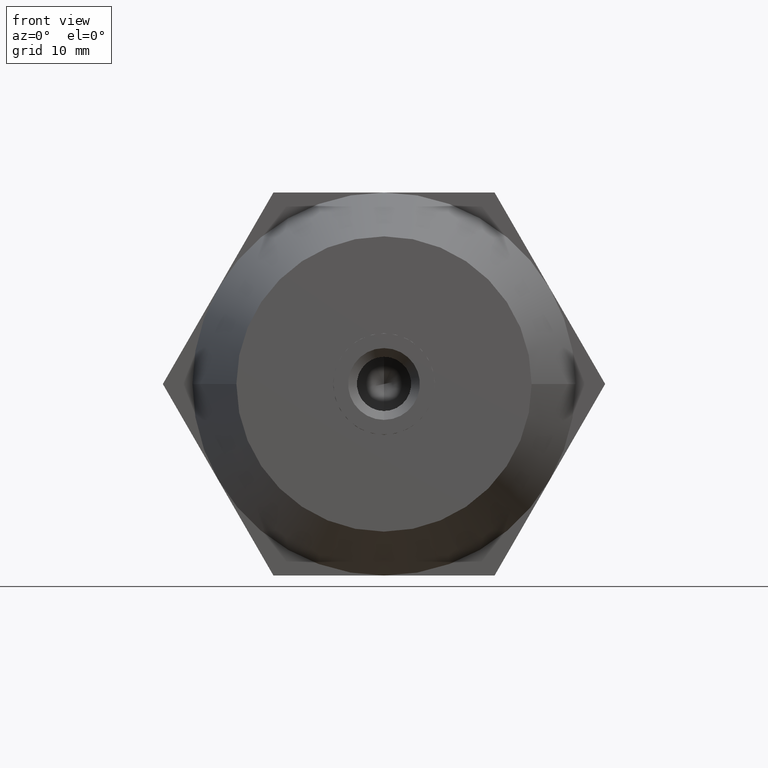
[diagram: clean part render]
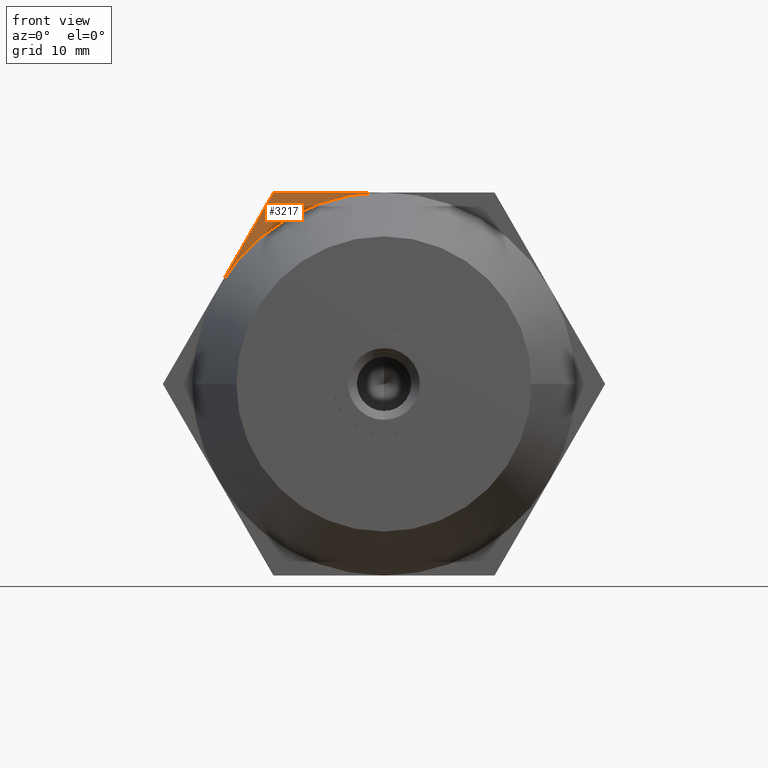
[diagram: same view with one face highlighted and labeled with its STEP entity id]
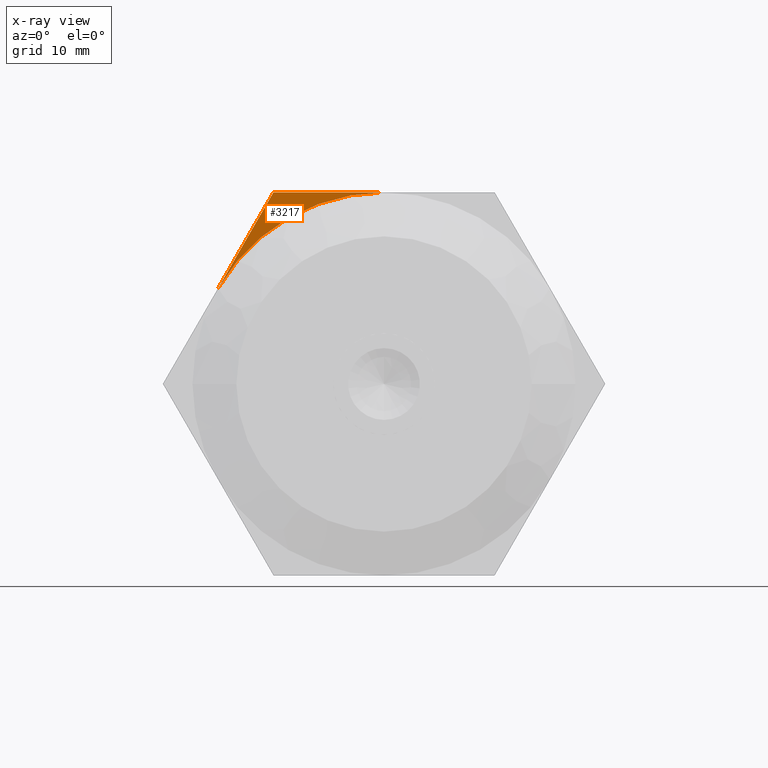
[diagram: x-ray of the same camera — body ghosted, the highlighted face saturated]
A machine part, front view. The second image highlights one B-rep face of the part: STEP entity #3217.
The next image is the same camera in x-ray: the body ghosted, the highlighted face saturated — about 0% of this face is hidden behind the body in this view.
In plain terms, the highlighted planar face has unit normal (0, 1, 0).
Its self-contained STEP definition (entity closure, byte-faithful):
#142 = VERTEX_POINT ( 'NONE', #1043 ) ;
#198 = AXIS2_PLACEMENT_3D ( 'NONE', #3121, #2288, #1663 ) ;
#211 = VERTEX_POINT ( 'NONE', #3705 ) ;
#287 = CARTESIAN_POINT ( 'NONE',  ( 4.476762181554124600E-016, -5.000000000000000000, 24.00000000000000000 ) ) ;
#412 = ORIENTED_EDGE ( 'NONE', *, *, #1094, .T. ) ;
#437 = DIRECTION ( 'NONE',  ( 0.4999999999999998900, 0.0000000000000000000, 0.8660254037844387100 ) ) ;
#524 = EDGE_CURVE ( 'NONE', #211, #142, #3124, .T. ) ;
#651 = EDGE_LOOP ( 'NONE', ( #3334, #412, #1664 ) ) ;
#870 = DIRECTION ( 'NONE',  ( 0.0000000000000000000, 0.0000000000000000000, 1.000000000000000000 ) ) ;
#1043 = CARTESIAN_POINT ( 'NONE',  ( -13.85640646055101900, -5.000000000000000000, 24.00000000000000000 ) ) ;
#1094 = EDGE_CURVE ( 'NONE', #211, #1145, #2037, .T. ) ;
#1145 = VERTEX_POINT ( 'NONE', #287 ) ;
#1208 = FACE_OUTER_BOUND ( 'NONE', #651, .T. ) ;
#1307 = DIRECTION ( 'NONE',  ( 1.000000000000000000, 0.0000000000000000000, 1.251928832280965700E-016 ) ) ;
#1449 = VECTOR ( 'NONE', #1307, 1000.000000000000000 ) ;
#1567 = VECTOR ( 'NONE', #437, 1000.000000000000000 ) ;
#1663 = DIRECTION ( 'NONE',  ( -1.000000000000000000, -1.445602896647339200E-016, 0.0000000000000000000 ) ) ;
#1664 = ORIENTED_EDGE ( 'NONE', *, *, #2536, .F. ) ;
#2037 = CIRCLE ( 'NONE', #198, 24.00000000000000000 ) ;
#2047 = PLANE ( 'NONE',  #2460 ) ;
#2172 = CARTESIAN_POINT ( 'NONE',  ( -13.85640646055101900, -5.000000000000000000, 24.00000000000000000 ) ) ;
#2288 = DIRECTION ( 'NONE',  ( -1.549594883678885000E-016, 1.000000000000000000, 0.0000000000000000000 ) ) ;
#2460 = AXIS2_PLACEMENT_3D ( 'NONE', #2584, #3184, #870 ) ;
#2536 = EDGE_CURVE ( 'NONE', #142, #1145, #2715, .T. ) ;
#2584 = CARTESIAN_POINT ( 'NONE',  ( 0.0000000000000000000, -5.000000000000000000, 0.0000000000000000000 ) ) ;
#2715 = LINE ( 'NONE', #2172, #1449 ) ;
#2770 = CARTESIAN_POINT ( 'NONE',  ( -27.71281292110205300, -5.000000000000000000, 1.212626971216108200E-016 ) ) ;
#3121 = CARTESIAN_POINT ( 'NONE',  ( 3.452305415629730200E-015, -5.000000000000000000, 0.0000000000000000000 ) ) ;
#3124 = LINE ( 'NONE', #2770, #1567 ) ;
#3184 = DIRECTION ( 'NONE',  ( 0.0000000000000000000, 1.000000000000000000, 0.0000000000000000000 ) ) ;
#3217 = ADVANCED_FACE ( 'NONE', ( #1208 ), #2047, .F. ) ;
#3334 = ORIENTED_EDGE ( 'NONE', *, *, #524, .F. ) ;
#3705 = CARTESIAN_POINT ( 'NONE',  ( -20.78460969082655300, -5.000000000000000000, 12.00000000000000000 ) ) ;